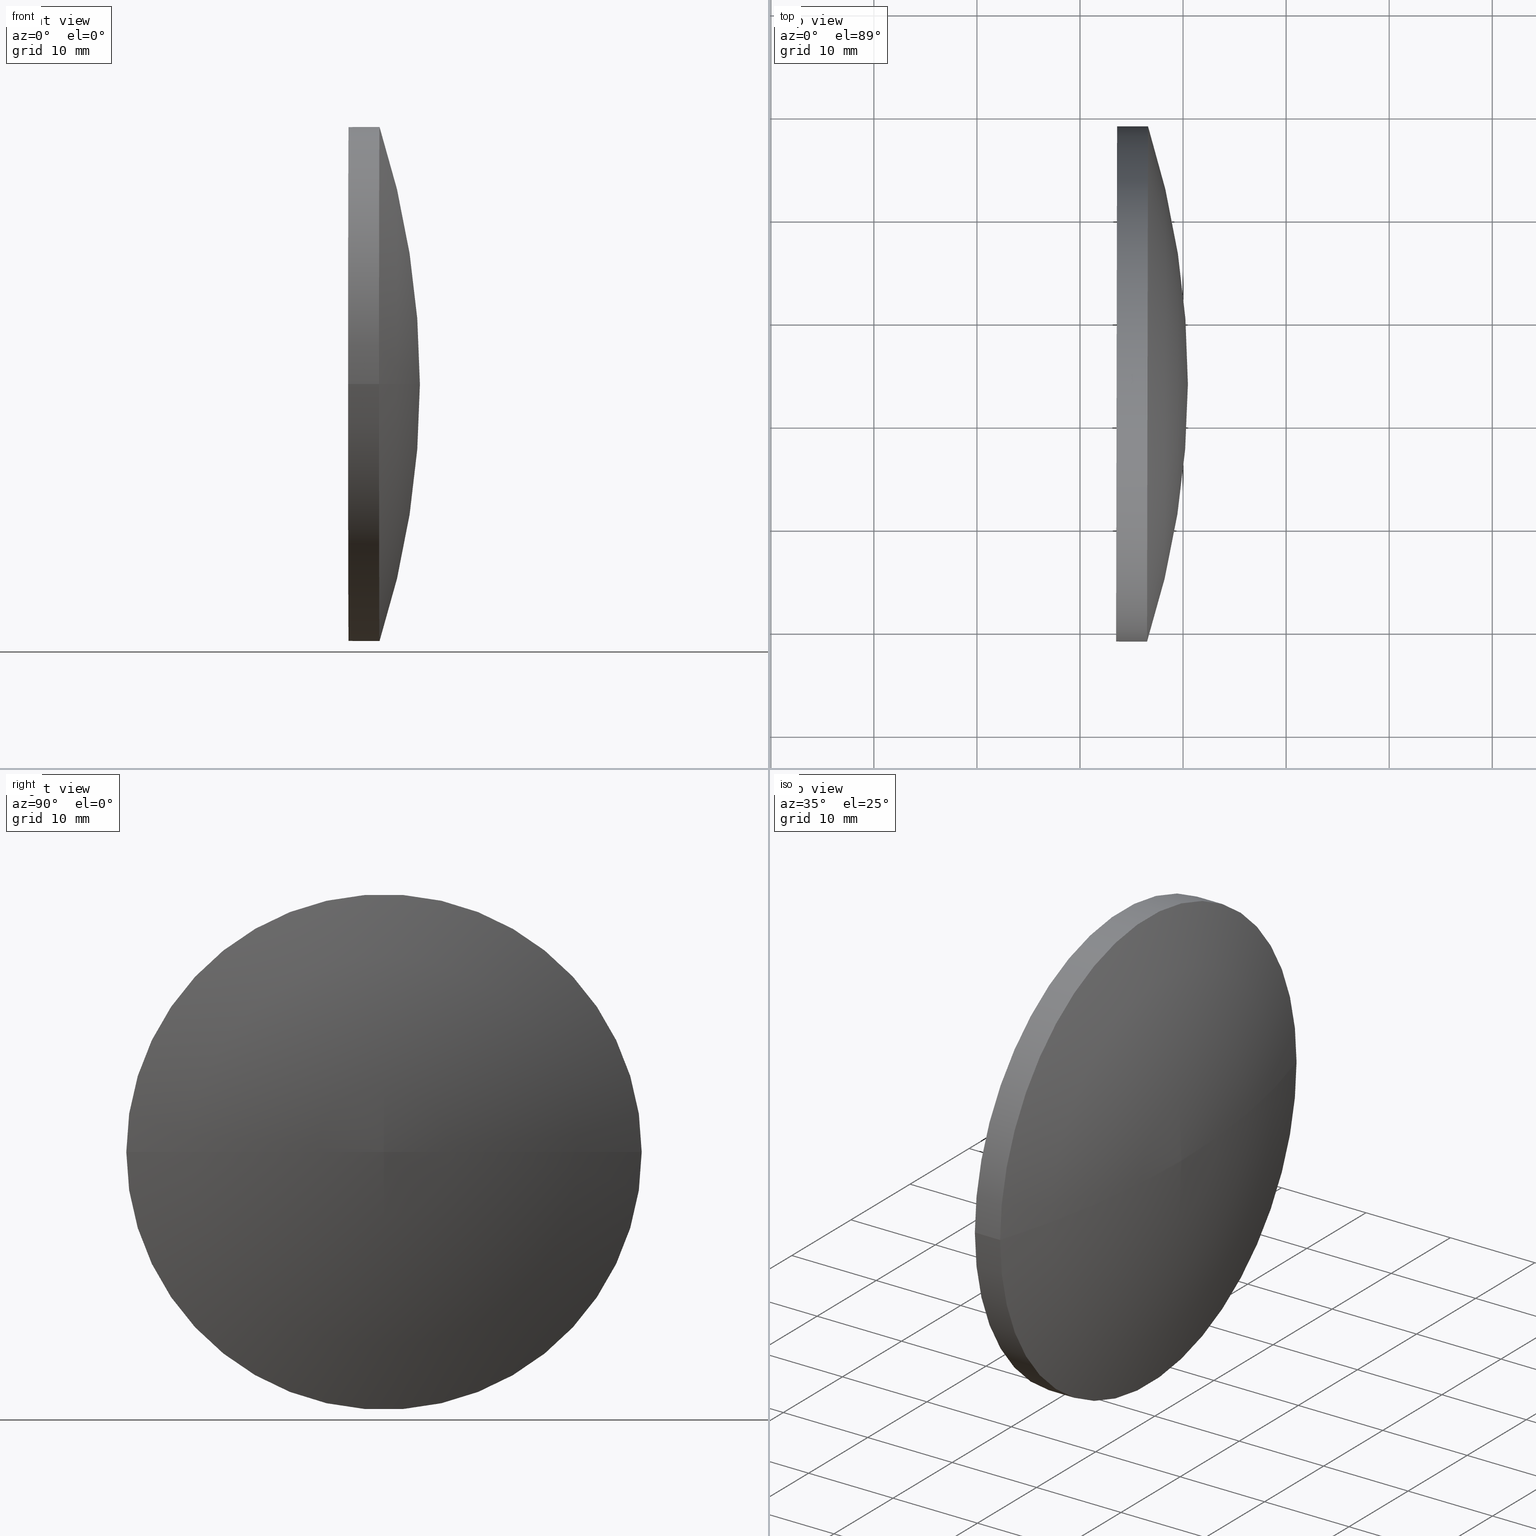
[diagram: canonical four-view strip — front | top / right | iso, engineering-drawing reading convention]
A machine part, canonical four-view strip (front | top / right | iso — engineering-drawing reading convention). The complete STEP part file that produces these views, byte-faithful:
ISO-10303-21;
HEADER;
FILE_DESCRIPTION (( 'STEP AP214' ),
    '1' );
FILE_NAME ('100155.STEP',
    '2019-05-16T02:25:06',
    ( '' ),
    ( '' ),
    'SwSTEP 2.0',
    'SolidWorks 2016',
    '' );
FILE_SCHEMA (( 'AUTOMOTIVE_DESIGN' ));
ENDSEC;

DATA;
#1 = SHAPE_DEFINITION_REPRESENTATION ( #48, #6 ) ;
#2 = ORIENTED_EDGE ( 'NONE', *, *, #126, .F. ) ;
#3 = FILL_AREA_STYLE ('',( #121 ) ) ;
#4 = CARTESIAN_POINT ( 'NONE',  ( 460.4676614032583200, -36.17253721817285600, 0.0000000000000000000 ) ) ;
#5 = EDGE_CURVE ( 'NONE', #158, #166, #30, .T. ) ;
#6 = ADVANCED_BREP_SHAPE_REPRESENTATION ( '100155', ( #72, #112 ), #159 ) ;
#7 = CARTESIAN_POINT ( 'NONE',  ( 377.7835945294264700, -36.01192769086913600, 0.0000000000000000000 ) ) ;
#8 = DIRECTION ( 'NONE',  ( -0.001942444661694166000, -0.9999981134525887100, 0.0000000000000000000 ) ) ;
#9 =( GEOMETRIC_REPRESENTATION_CONTEXT ( 3 ) GLOBAL_UNCERTAINTY_ASSIGNED_CONTEXT ( ( #95 ) ) GLOBAL_UNIT_ASSIGNED_CONTEXT ( ( #171, #109, #145 ) ) REPRESENTATION_CONTEXT ( 'NONE', 'WORKASPACE' ) );
#10 = FACE_OUTER_BOUND ( 'NONE', #97, .T. ) ;
#11 = DIRECTION ( 'NONE',  ( -0.9999981134525887100, 0.001942444661694015300, -0.0000000000000000000 ) ) ;
#12 = SURFACE_STYLE_USAGE ( .BOTH. , #100 ) ;
#13 = PRESENTATION_STYLE_ASSIGNMENT (( #12 ) ) ;
#14 = CARTESIAN_POINT ( 'NONE',  ( 456.5490901359143000, -36.16492559597344300, 0.0000000000000000000 ) ) ;
#15 = DIRECTION ( 'NONE',  ( 0.9999924538174724800, -0.003884881994361463100, 2.378808637466067800E-019 ) ) ;
#16 = CARTESIAN_POINT ( 'NONE',  ( 456.5490901359143000, -36.16492559597344300, 0.0000000000000000000 ) ) ;
#17 = CIRCLE ( 'NONE', #65, 25.00578017029978600 ) ;
#18 =( LENGTH_UNIT ( ) NAMED_UNIT ( * ) SI_UNIT ( .MILLI., .METRE. ) );
#19 = PRODUCT_DEFINITION_FORMATION_WITH_SPECIFIED_SOURCE ( '�κ�', '', #117, .NOT_KNOWN. ) ;
#20 = DIRECTION ( 'NONE',  ( -0.9999981134525887100, 0.001942444661694015300, -0.0000000000000000000 ) ) ;
#21 = VECTOR ( 'NONE', #169, 1000.000000000000000 ) ;
#22 = CARTESIAN_POINT ( 'NONE',  ( 453.5491014551880700, -36.15909827298190000, 0.0000000000000000000 ) ) ;
#23 = EDGE_CURVE ( 'NONE', #58, #166, #17, .T. ) ;
#24 = FACE_OUTER_BOUND ( 'NONE', #38, .T. ) ;
#25 = EDGE_LOOP ( 'NONE', ( #90, #50, #2 ) ) ;
#26 = APPLICATION_CONTEXT ( 'automotive_design' ) ;
#27 = AXIS2_PLACEMENT_3D ( 'NONE', #7, #80, #140 ) ;
#28 = DIRECTION ( 'NONE',  ( 0.9999981134525887100, -0.001942444661694015300, 0.0000000000000000000 ) ) ;
#29 = DIRECTION ( 'NONE',  ( -1.000000000000000000, 0.0000000000000000000, 0.0000000000000000000 ) ) ;
#30 = CIRCLE ( 'NONE', #113, 82.68435400516793300 ) ;
#31 = CONICAL_SURFACE ( 'NONE', #36, 24.99995283631470500, 1.568853880911697000 ) ;
#32 =( NAMED_UNIT ( * ) PLANE_ANGLE_UNIT ( ) SI_UNIT ( $, .RADIAN. ) );
#33 = EDGE_CURVE ( 'NONE', #61, #166, #47, .T. ) ;
#34 = ORIENTED_EDGE ( 'NONE', *, *, #153, .T. ) ;
#35 = DIRECTION ( 'NONE',  ( 0.9999981134525887100, -0.001942444661694015300, 0.0000000000000000000 ) ) ;
#36 = AXIS2_PLACEMENT_3D ( 'NONE', #151, #71, #8 ) ;
#37 = LINE ( 'NONE', #182, #21 ) ;
#38 = EDGE_LOOP ( 'NONE', ( #87, #176, #180 ) ) ;
#39 = SURFACE_SIDE_STYLE ('',( #188 ) ) ;
#40 = CIRCLE ( 'NONE', #88, 25.00578017029978600 ) ;
#41 = VECTOR ( 'NONE', #108, 1000.000000000000000 ) ;
#42 = ADVANCED_FACE ( 'NONE', ( #134 ), #101, .T. ) ;
#43 = CARTESIAN_POINT ( 'NONE',  ( 453.5976624801175500, -11.15919260026350700, 0.0000000000000000000 ) ) ;
#44 = STYLED_ITEM ( 'NONE', ( #84 ), #72 ) ;
#45 = CARTESIAN_POINT ( 'NONE',  ( 453.5491014551880700, -36.15909827298190000, 0.0000000000000000000 ) ) ;
#46 = DIRECTION ( 'NONE',  ( -0.003884881994360192500, -0.9999924538174724800, 0.0000000000000000000 ) ) ;
#47 = LINE ( 'NONE', #89, #124 ) ;
#48 = PRODUCT_DEFINITION_SHAPE ( 'NONE', 'NONE',  #67 ) ;
#49 = DIRECTION ( 'NONE',  ( -0.9999981134525887100, 0.001942444661694015300, -0.0000000000000000000 ) ) ;
#50 = ORIENTED_EDGE ( 'NONE', *, *, #131, .T. ) ;
#51 =( NAMED_UNIT ( * ) PLANE_ANGLE_UNIT ( ) SI_UNIT ( $, .RADIAN. ) );
#52 = CLOSED_SHELL ( 'NONE', ( #161, #42, #178, #133, #105, #177 ) ) ;
#53 = CARTESIAN_POINT ( 'NONE',  ( 0.0000000000000000000, 0.0000000000000000000, 0.0000000000000000000 ) ) ;
#54 = EDGE_LOOP ( 'NONE', ( #164, #34, #139 ) ) ;
#55 = PRESENTATION_LAYER_ASSIGNMENT (  '', '', ( #147 ) ) ;
#56 = DIRECTION ( 'NONE',  ( -2.378808637464439400E-019, -1.224644488793104600E-016, 1.000000000000000000 ) ) ;
#57 = VECTOR ( 'NONE', #46, 1000.000000000000100 ) ;
#58 = VERTEX_POINT ( 'NONE', #148 ) ;
#59 = DIRECTION ( 'NONE',  ( -0.001942444661694358800, -0.9999981134525884900, 0.0000000000000000000 ) ) ;
#60 = SURFACE_STYLE_USAGE ( .BOTH. , #39 ) ;
#61 = VERTEX_POINT ( 'NONE', #135 ) ;
#62 = DIRECTION ( 'NONE',  ( -0.001942444661694166000, -0.9999981134525887100, 0.0000000000000000000 ) ) ;
#63 = TOROIDAL_SURFACE ( 'NONE', #27, -0.1472651872171409100, 82.68435400516793300 ) ;
#64 = VERTEX_POINT ( 'NONE', #43 ) ;
#65 = AXIS2_PLACEMENT_3D ( 'NONE', #16, #132, #59 ) ;
#66 = FACE_OUTER_BOUND ( 'NONE', #25, .T. ) ;
#67 = PRODUCT_DEFINITION ( 'δ֪', '', #19, #73 ) ;
#68 = FILL_AREA_STYLE ('',( #187 ) ) ;
#69 = ORIENTED_EDGE ( 'NONE', *, *, #23, .T. ) ;
#70 = EDGE_CURVE ( 'NONE', #154, #64, #85, .T. ) ;
#71 = DIRECTION ( 'NONE',  ( -0.9999981134525887100, 0.001942444661694015300, -0.0000000000000000000 ) ) ;
#72 = MANIFOLD_SOLID_BREP ( '��ת1', #52 ) ;
#73 = PRODUCT_DEFINITION_CONTEXT ( 'detailed design', #129, 'design' ) ;
#74 = MECHANICAL_DESIGN_GEOMETRIC_PRESENTATION_REPRESENTATION (  '', ( #44 ), #128 ) ;
#75 = CARTESIAN_POINT ( 'NONE',  ( 456.5005177917109900, -61.17065859168352700, 0.0000000000000000000 ) ) ;
#76 = CARTESIAN_POINT ( 'NONE',  ( 453.5491014551880700, -36.15909827298190000, 0.0000000000000000000 ) ) ;
#77 = CONICAL_SURFACE ( 'NONE', #79, 24.99995283631470500, 1.568853880911697000 ) ;
#78 = DIRECTION ( 'NONE',  ( -0.001942444661694358800, -0.9999981134525884900, 0.0000000000000000000 ) ) ;
#79 = AXIS2_PLACEMENT_3D ( 'NONE', #76, #138, #62 ) ;
#80 = DIRECTION ( 'NONE',  ( -0.9999981134525887100, 0.001942444661694015300, -0.0000000000000000000 ) ) ;
#81 = CARTESIAN_POINT ( 'NONE',  ( 377.7835945294264700, -36.01192769086913600, 0.0000000000000000000 ) ) ;
#82 = EDGE_CURVE ( 'NONE', #64, #61, #123, .T. ) ;
#83 =( LENGTH_UNIT ( ) NAMED_UNIT ( * ) SI_UNIT ( .MILLI., .METRE. ) );
#84 = PRESENTATION_STYLE_ASSIGNMENT (( #60 ) ) ;
#85 = LINE ( 'NONE', #179, #41 ) ;
#86 = APPLICATION_PROTOCOL_DEFINITION ( 'draft international standard', 'automotive_design', 1998, #26 ) ;
#87 = ORIENTED_EDGE ( 'NONE', *, *, #131, .F. ) ;
#88 = AXIS2_PLACEMENT_3D ( 'NONE', #96, #110, #78 ) ;
#89 = CARTESIAN_POINT ( 'NONE',  ( 456.5005177917109900, -61.17065859168338400, 3.062324864573999700E-015 ) ) ;
#90 = ORIENTED_EDGE ( 'NONE', *, *, #5, .F. ) ;
#91 = DIRECTION ( 'NONE',  ( 0.0000000000000000000, -1.000000000000000000, -1.224644488793104600E-016 ) ) ;
#92 = ORIENTED_EDGE ( 'NONE', *, *, #162, .F. ) ;
#93 = CARTESIAN_POINT ( 'NONE',  ( 453.5976624801175500, -36.15919260026350900, 0.0000000000000000000 ) ) ;
#94 = COLOUR_RGB ( '',1.000000000000000000, 1.000000000000000000, 1.000000000000000000 ) ;
#95 = UNCERTAINTY_MEASURE_WITH_UNIT (LENGTH_MEASURE( 1.000000000000000100E-005 ), #171, 'distance_accuracy_value', 'NONE');
#96 = CARTESIAN_POINT ( 'NONE',  ( 456.5490901359143000, -36.16492559597344300, 0.0000000000000000000 ) ) ;
#97 = EDGE_LOOP ( 'NONE', ( #172, #144, #170 ) ) ;
#98 = PRESENTATION_LAYER_ASSIGNMENT (  '', '', ( #44 ) ) ;
#99 = DIRECTION ( 'NONE',  ( -0.001942444661694015300, -0.9999981134525887100, 0.0000000000000000000 ) ) ;
#100 = SURFACE_SIDE_STYLE ('',( #119 ) ) ;
#101 = CONICAL_SURFACE ( 'NONE', #107, 25.00578017029979000, 0.001942445883200915900 ) ;
#102 = ORIENTED_EDGE ( 'NONE', *, *, #82, .F. ) ;
#103 = AXIS2_PLACEMENT_3D ( 'NONE', #45, #20, #167 ) ;
#104 = CARTESIAN_POINT ( 'NONE',  ( 377.7838805839032300, -35.86466278147475600, 0.0000000000000000000 ) ) ;
#105 = ADVANCED_FACE ( 'NONE', ( #183 ), #163, .T. ) ;
#106 = ORIENTED_EDGE ( 'NONE', *, *, #33, .F. ) ;
#107 = AXIS2_PLACEMENT_3D ( 'NONE', #14, #28, #130 ) ;
#108 = DIRECTION ( 'NONE',  ( -5.876375774871434000E-017, 1.000000000000000000, 1.224644488793104600E-016 ) ) ;
#109 =( NAMED_UNIT ( * ) PLANE_ANGLE_UNIT ( ) SI_UNIT ( $, .RADIAN. ) );
#110 = DIRECTION ( 'NONE',  ( -0.9999981134525887100, 0.001942444661694015300, -0.0000000000000000000 ) ) ;
#111 = ORIENTED_EDGE ( 'NONE', *, *, #162, .T. ) ;
#112 = AXIS2_PLACEMENT_3D ( 'NONE', #53, #189, #114 ) ;
#113 = AXIS2_PLACEMENT_3D ( 'NONE', #104, #118, #29 ) ;
#114 = DIRECTION ( 'NONE',  ( 1.000000000000000000, 0.0000000000000000000, 0.0000000000000000000 ) ) ;
#115 = PRODUCT_RELATED_PRODUCT_CATEGORY ( 'part', '', ( #117 ) ) ;
#116 =( NAMED_UNIT ( * ) SI_UNIT ( $, .STERADIAN. ) SOLID_ANGLE_UNIT ( ) );
#117 = PRODUCT ( '100155', '100155', '', ( #173 ) ) ;
#118 = DIRECTION ( 'NONE',  ( 0.0000000000000000000, -0.0000000000000000000, -1.000000000000000000 ) ) ;
#119 = SURFACE_STYLE_FILL_AREA ( #68 ) ;
#120 = ORIENTED_EDGE ( 'NONE', *, *, #126, .T. ) ;
#121 = FILL_AREA_STYLE_COLOUR ( '', #94 ) ;
#122 = AXIS2_PLACEMENT_3D ( 'NONE', #22, #49, #141 ) ;
#123 = CIRCLE ( 'NONE', #122, 24.99995283631470500 ) ;
#124 = VECTOR ( 'NONE', #15, 1000.000000000000100 ) ;
#125 = ORIENTED_EDGE ( 'NONE', *, *, #33, .T. ) ;
#126 = EDGE_CURVE ( 'NONE', #166, #58, #40, .T. ) ;
#127 = UNCERTAINTY_MEASURE_WITH_UNIT (LENGTH_MEASURE( 1.000000000000000100E-005 ), #18, 'distance_accuracy_value', 'NONE');
#128 =( GEOMETRIC_REPRESENTATION_CONTEXT ( 3 ) GLOBAL_UNCERTAINTY_ASSIGNED_CONTEXT ( ( #127 ) ) GLOBAL_UNIT_ASSIGNED_CONTEXT ( ( #18, #32, #116 ) ) REPRESENTATION_CONTEXT ( 'NONE', 'WORKASPACE' ) );
#129 = APPLICATION_CONTEXT ( 'automotive_design' ) ;
#130 = DIRECTION ( 'NONE',  ( 0.001942444661694358600, 0.9999981134525884900, 0.0000000000000000000 ) ) ;
#131 = EDGE_CURVE ( 'NONE', #158, #58, #160, .T. ) ;
#132 = DIRECTION ( 'NONE',  ( -0.9999981134525887100, 0.001942444661694015300, -0.0000000000000000000 ) ) ;
#133 = ADVANCED_FACE ( 'NONE', ( #24 ), #63, .T. ) ;
#134 = FACE_OUTER_BOUND ( 'NONE', #143, .T. ) ;
#135 = CARTESIAN_POINT ( 'NONE',  ( 453.5005404302585800, -61.15900394570029900, 3.061611221982759500E-015 ) ) ;
#136 = EDGE_LOOP ( 'NONE', ( #106, #102, #111, #69 ) ) ;
#137 = EDGE_CURVE ( 'NONE', #61, #64, #186, .T. ) ;
#138 = DIRECTION ( 'NONE',  ( -0.9999981134525887100, 0.001942444661694015300, -0.0000000000000000000 ) ) ;
#139 = ORIENTED_EDGE ( 'NONE', *, *, #137, .T. ) ;
#140 = DIRECTION ( 'NONE',  ( -0.001942444661694015300, -0.9999981134525887100, 0.0000000000000000000 ) ) ;
#141 = DIRECTION ( 'NONE',  ( -0.001942444661694166000, -0.9999981134525887100, 0.0000000000000000000 ) ) ;
#142 = AXIS2_PLACEMENT_3D ( 'NONE', #155, #35, #184 ) ;
#143 = EDGE_LOOP ( 'NONE', ( #174, #125, #120, #92 ) ) ;
#144 = ORIENTED_EDGE ( 'NONE', *, *, #70, .T. ) ;
#145 =( NAMED_UNIT ( * ) SI_UNIT ( $, .STERADIAN. ) SOLID_ANGLE_UNIT ( ) );
#146 = APPLICATION_PROTOCOL_DEFINITION ( 'draft international standard', 'automotive_design', 1998, #129 ) ;
#147 = STYLED_ITEM ( 'NONE', ( #13 ), #6 ) ;
#148 = CARTESIAN_POINT ( 'NONE',  ( 456.5976624801175500, -11.15919260026343600, 3.062324864574008000E-015 ) ) ;
#149 = LINE ( 'NONE', #168, #57 ) ;
#150 = AXIS2_PLACEMENT_3D ( 'NONE', #81, #11, #99 ) ;
#151 = CARTESIAN_POINT ( 'NONE',  ( 453.5491014551880700, -36.15909827298190000, 0.0000000000000000000 ) ) ;
#152 = COLOUR_RGB ( '',1.000000000000000000, 1.000000000000000000, 1.000000000000000000 ) ;
#153 = EDGE_CURVE ( 'NONE', #154, #61, #149, .T. ) ;
#154 = VERTEX_POINT ( 'NONE', #93 ) ;
#155 = CARTESIAN_POINT ( 'NONE',  ( 456.5490901359143000, -36.16492559597344300, 0.0000000000000000000 ) ) ;
#156 =( NAMED_UNIT ( * ) SI_UNIT ( $, .STERADIAN. ) SOLID_ANGLE_UNIT ( ) );
#157 = TOROIDAL_SURFACE ( 'NONE', #150, -0.1472651872171409100, 82.68435400516793300 ) ;
#158 = VERTEX_POINT ( 'NONE', #4 ) ;
#159 =( GEOMETRIC_REPRESENTATION_CONTEXT ( 3 ) GLOBAL_UNCERTAINTY_ASSIGNED_CONTEXT ( ( #165 ) ) GLOBAL_UNIT_ASSIGNED_CONTEXT ( ( #83, #51, #156 ) ) REPRESENTATION_CONTEXT ( 'NONE', 'WORKASPACE' ) );
#160 = CIRCLE ( 'NONE', #190, 82.68435400516793300 ) ;
#161 = ADVANCED_FACE ( 'NONE', ( #10 ), #77, .F. ) ;
#162 = EDGE_CURVE ( 'NONE', #64, #58, #37, .T. ) ;
#163 = CONICAL_SURFACE ( 'NONE', #142, 25.00578017029979000, 0.001942445883200915900 ) ;
#164 = ORIENTED_EDGE ( 'NONE', *, *, #70, .F. ) ;
#165 = UNCERTAINTY_MEASURE_WITH_UNIT (LENGTH_MEASURE( 1.000000000000000100E-005 ), #83, 'distance_accuracy_value', 'NONE');
#166 = VERTEX_POINT ( 'NONE', #75 ) ;
#167 = DIRECTION ( 'NONE',  ( -0.001942444661694166000, -0.9999981134525887100, 0.0000000000000000000 ) ) ;
#168 = CARTESIAN_POINT ( 'NONE',  ( 453.5005404302585800, -61.15900394570029900, 0.0000000000000000000 ) ) ;
#169 = DIRECTION ( 'NONE',  ( 1.000000000000000000, 1.329665544336222600E-015, 0.0000000000000000000 ) ) ;
#170 = ORIENTED_EDGE ( 'NONE', *, *, #82, .T. ) ;
#171 =( LENGTH_UNIT ( ) NAMED_UNIT ( * ) SI_UNIT ( .MILLI., .METRE. ) );
#172 = ORIENTED_EDGE ( 'NONE', *, *, #153, .F. ) ;
#173 = PRODUCT_CONTEXT ( 'NONE', #26, 'mechanical' ) ;
#174 = ORIENTED_EDGE ( 'NONE', *, *, #137, .F. ) ;
#175 = FACE_OUTER_BOUND ( 'NONE', #54, .T. ) ;
#176 = ORIENTED_EDGE ( 'NONE', *, *, #5, .T. ) ;
#177 = ADVANCED_FACE ( 'NONE', ( #175 ), #31, .F. ) ;
#178 = ADVANCED_FACE ( 'NONE', ( #66 ), #157, .T. ) ;
#179 = CARTESIAN_POINT ( 'NONE',  ( 453.5976624801175500, -11.15919260026350700, 3.061611221982759500E-015 ) ) ;
#180 = ORIENTED_EDGE ( 'NONE', *, *, #23, .F. ) ;
#181 = MECHANICAL_DESIGN_GEOMETRIC_PRESENTATION_REPRESENTATION (  '', ( #147 ), #9 ) ;
#182 = CARTESIAN_POINT ( 'NONE',  ( 456.5976624801175500, -11.15919260026350700, 0.0000000000000000000 ) ) ;
#183 = FACE_OUTER_BOUND ( 'NONE', #136, .T. ) ;
#184 = DIRECTION ( 'NONE',  ( 0.001942444661694358600, 0.9999981134525884900, 0.0000000000000000000 ) ) ;
#185 = CARTESIAN_POINT ( 'NONE',  ( 377.7833084749496500, -36.15919260026351600, -1.803478401513073500E-017 ) ) ;
#186 = CIRCLE ( 'NONE', #103, 24.99995283631470500 ) ;
#187 = FILL_AREA_STYLE_COLOUR ( '', #152 ) ;
#188 = SURFACE_STYLE_FILL_AREA ( #3 ) ;
#189 = DIRECTION ( 'NONE',  ( 0.0000000000000000000, 0.0000000000000000000, 1.000000000000000000 ) ) ;
#190 = AXIS2_PLACEMENT_3D ( 'NONE', #185, #56, #91 ) ;
ENDSEC;
END-ISO-10303-21;
